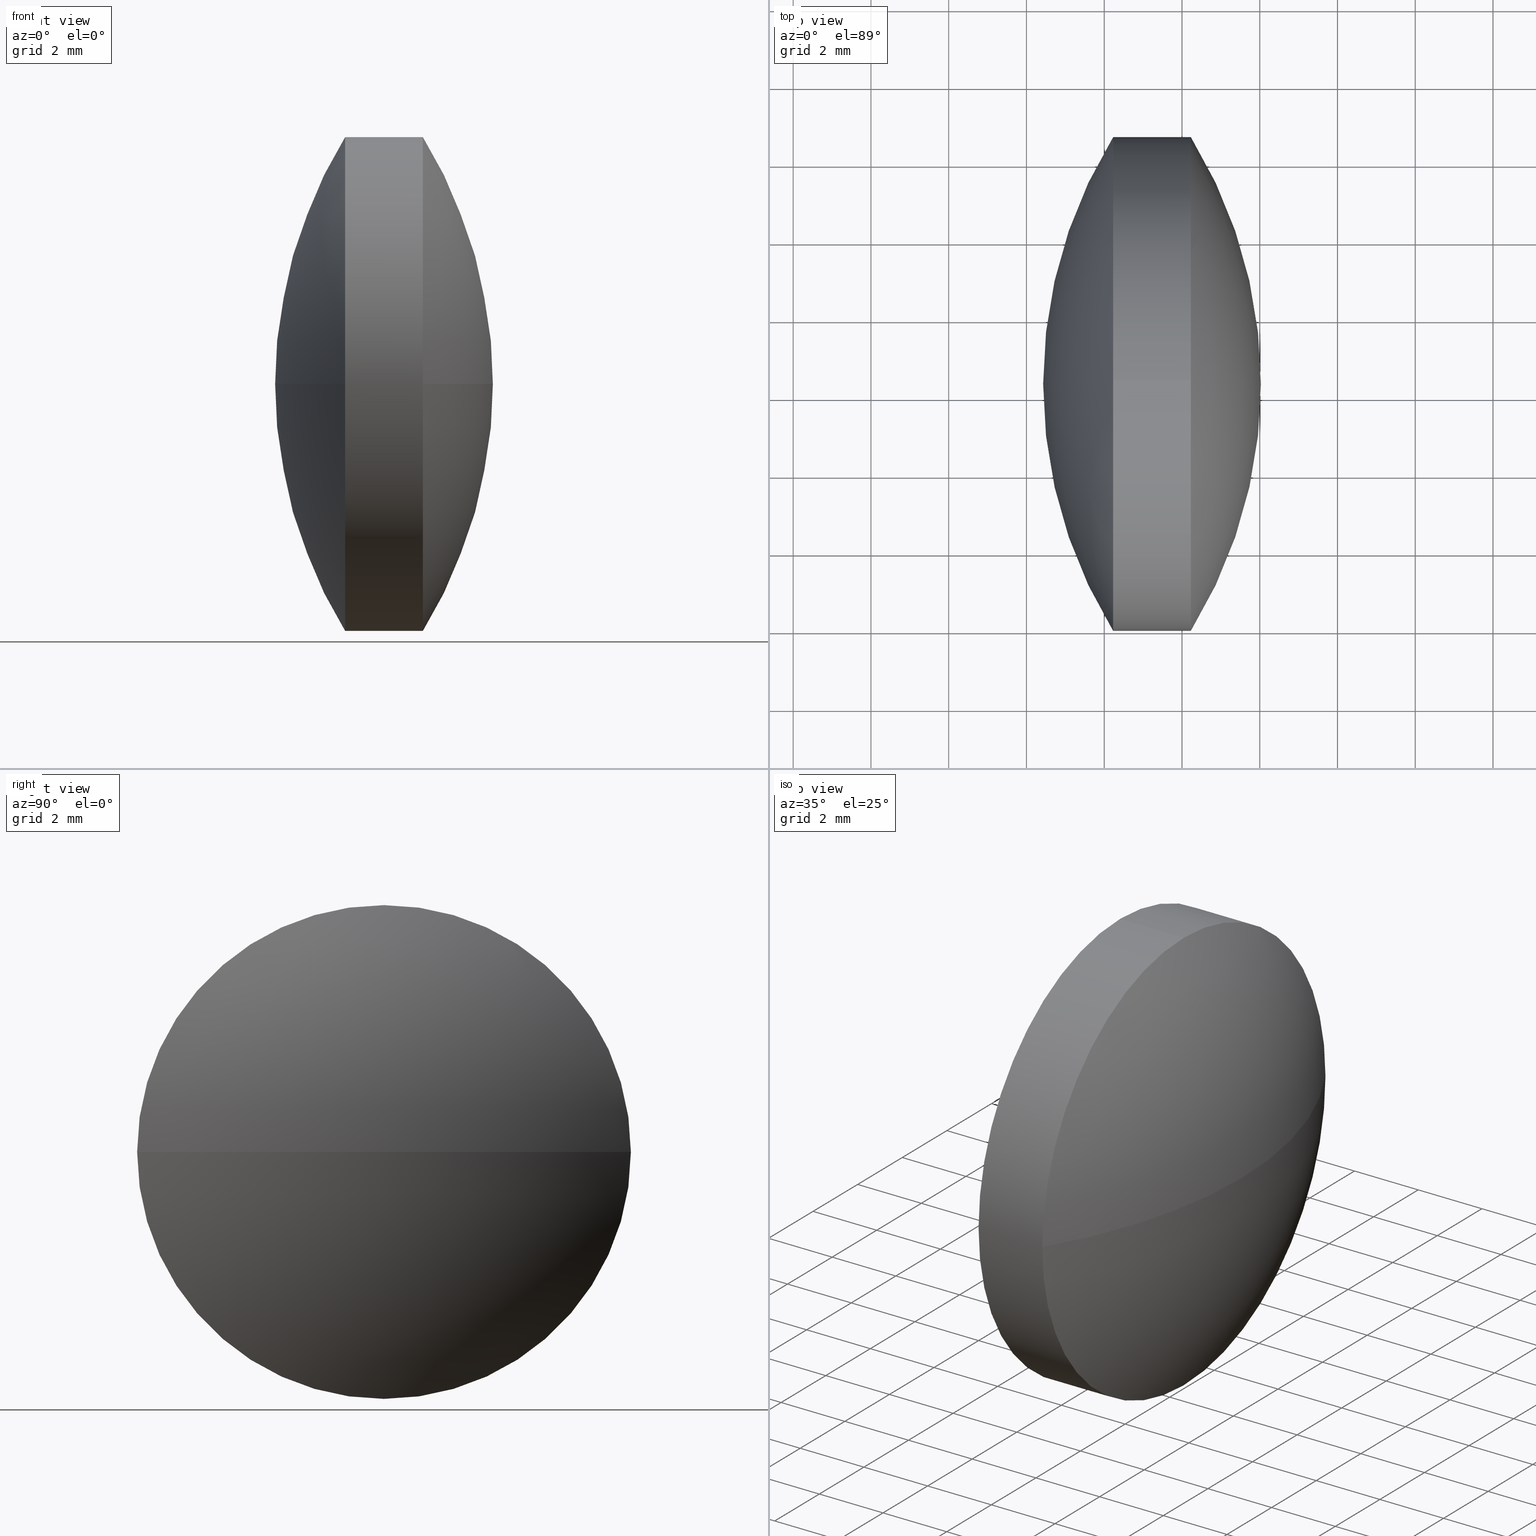
[diagram: canonical four-view strip — front | top / right | iso, engineering-drawing reading convention]
A machine part, canonical four-view strip (front | top / right | iso — engineering-drawing reading convention). The complete STEP part file that produces these views, byte-faithful:
ISO-10303-21;
HEADER;
FILE_DESCRIPTION (( 'STEP AP203' ),
    '1' );
FILE_NAME ('110136.STEP',
    '2019-07-08T08:42:02',
    ( '' ),
    ( '' ),
    'SwSTEP 2.0',
    'SolidWorks 2016',
    '' );
FILE_SCHEMA (( 'CONFIG_CONTROL_DESIGN' ));
ENDSEC;

DATA;
#1 = AXIS2_PLACEMENT_3D ( 'NONE', #150, #38, #118 ) ;
#2 = SPHERICAL_SURFACE ( 'NONE', #234, 12.10096423222025500 ) ;
#3 = CARTESIAN_POINT ( 'NONE',  ( 33.92811979796815800, 24.30805651159239700, 0.0000000000000000000 ) ) ;
#4 = AXIS2_PLACEMENT_3D ( 'NONE', #298, #65, #247 ) ;
#5 = ADVANCED_FACE ( 'NONE', ( #72 ), #266, .T. ) ;
#6 = DIRECTION ( 'NONE',  ( 0.0000000000000000000, 0.0000000000000000000, -1.000000000000000000 ) ) ;
#7 = CARTESIAN_POINT ( 'NONE',  ( 39.65270067541857900, 24.30805651159239000, 0.0000000000000000000 ) ) ;
#8 = CALENDAR_DATE ( 2019, 8, 7 ) ;
#9 = COORDINATED_UNIVERSAL_TIME_OFFSET ( 8, 0, .AHEAD. ) ;
#10 =( LENGTH_UNIT ( ) NAMED_UNIT ( * ) SI_UNIT ( .MILLI., .METRE. ) );
#11 = COORDINATED_UNIVERSAL_TIME_OFFSET ( 8, 0, .AHEAD. ) ;
#12 = ORGANIZATION ( 'δָ��', 'δָ��', '' ) ;
#13 = APPLICATION_PROTOCOL_DEFINITION ( 'international standard', 'config_control_design', 1994, #176 ) ;
#14 = CC_DESIGN_PERSON_AND_ORGANIZATION_ASSIGNMENT ( #263, #114, ( #159 ) ) ;
#15 = ORIENTED_EDGE ( 'NONE', *, *, #49, .F. ) ;
#16 = APPROVAL_STATUS ( 'not_yet_approved' ) ;
#17 = APPROVAL_PERSON_ORGANIZATION ( #241, #244, #205 ) ;
#18 = AXIS2_PLACEMENT_3D ( 'NONE', #84, #305, #229 ) ;
#19 = FACE_OUTER_BOUND ( 'NONE', #261, .T. ) ;
#20 = MECHANICAL_CONTEXT ( 'NONE', #304, 'mechanical' ) ;
#21 = APPROVAL_DATE_TIME ( #89, #244 ) ;
#22 = CALENDAR_DATE ( 2019, 8, 7 ) ;
#23 = COORDINATED_UNIVERSAL_TIME_OFFSET ( 8, 0, .AHEAD. ) ;
#24 = CIRCLE ( 'NONE', #341, 12.10096423222025500 ) ;
#25 = UNCERTAINTY_MEASURE_WITH_UNIT (LENGTH_MEASURE( 1.000000000000000100E-005 ), #10, 'distance_accuracy_value', 'NONE');
#26 = AXIS2_PLACEMENT_3D ( 'NONE', #202, #196, #198 ) ;
#27 = CARTESIAN_POINT ( 'NONE',  ( 39.65270067541857900, 24.30805651159239000, -6.349999999999997900 ) ) ;
#28 = PERSON_AND_ORGANIZATION ( #32, #12 ) ;
#29 = ORIENTED_EDGE ( 'NONE', *, *, #190, .T. ) ;
#30 = CARTESIAN_POINT ( 'NONE',  ( 33.92811979796815800, 24.30805651159239700, 0.0000000000000000000 ) ) ;
#31 = CC_DESIGN_PERSON_AND_ORGANIZATION_ASSIGNMENT ( #200, #285, ( #153 ) ) ;
#32 = PERSON ( 'δָ��', 'δָ��', 'δָ��', ('δָ��'), ('δָ��'), ('δָ��') ) ;
#33 = LOCAL_TIME ( 16, 42, 2.000000000000000000, #215 ) ;
#34 = CARTESIAN_POINT ( 'NONE',  ( 44.22913117304555200, 30.65805651159239500, 7.776507174585689200E-016 ) ) ;
#35 = LOCAL_TIME ( 16, 42, 2.000000000000000000, #23 ) ;
#36 = VERTEX_POINT ( 'NONE', #34 ) ;
#37 = CARTESIAN_POINT ( 'NONE',  ( 42.22906260161698100, 24.30805651159239000, 6.349999999999997900 ) ) ;
#38 = DIRECTION ( 'NONE',  ( -1.000000000000000000, -0.0000000000000000000, -0.0000000000000000000 ) ) ;
#39 = CC_DESIGN_PERSON_AND_ORGANIZATION_ASSIGNMENT ( #79, #121, ( #82 ) ) ;
#40 = DIRECTION ( 'NONE',  ( -1.000000000000000000, -0.0000000000000000000, -0.0000000000000000000 ) ) ;
#41 = AXIS2_PLACEMENT_3D ( 'NONE', #203, #236, #181 ) ;
#42 = EDGE_LOOP ( 'NONE', ( #333, #46, #56, #112, #214, #255 ) ) ;
#43 = CARTESIAN_POINT ( 'NONE',  ( 42.22906260161698100, 30.65805651159238800, 0.0000000000000000000 ) ) ;
#44 = APPROVAL_PERSON_ORGANIZATION ( #268, #113, #211 ) ;
#45 = PERSON_AND_ORGANIZATION_ROLE ( 'creator' ) ;
#46 = ORIENTED_EDGE ( 'NONE', *, *, #78, .T. ) ;
#47 = CC_DESIGN_PERSON_AND_ORGANIZATION_ASSIGNMENT ( #93, #45, ( #153 ) ) ;
#48 = CIRCLE ( 'NONE', #107, 12.10096423222029000 ) ;
#49 = EDGE_CURVE ( 'NONE', #99, #191, #252, .T. ) ;
#50 = LOCAL_TIME ( 16, 42, 2.000000000000000000, #314 ) ;
#51 = CC_DESIGN_APPROVAL ( #115, ( #221 ) ) ;
#52 = CC_DESIGN_APPROVAL ( #244, ( #171 ) ) ;
#53 = ORIENTED_EDGE ( 'NONE', *, *, #204, .T. ) ;
#54 = EDGE_CURVE ( 'NONE', #133, #104, #180, .T. ) ;
#55 = SHAPE_DEFINITION_REPRESENTATION ( #143, #313 ) ;
#56 = ORIENTED_EDGE ( 'NONE', *, *, #275, .F. ) ;
#57 = DIRECTION ( 'NONE',  ( -1.000000000000000000, -0.0000000000000000000, -0.0000000000000000000 ) ) ;
#58 = COORDINATED_UNIVERSAL_TIME_OFFSET ( 8, 0, .AHEAD. ) ;
#59 = AXIS2_PLACEMENT_3D ( 'NONE', #227, #83, #300 ) ;
#60 = DIRECTION ( 'NONE',  ( -1.000000000000000000, -0.0000000000000000000, -0.0000000000000000000 ) ) ;
#61 = DIRECTION ( 'NONE',  ( -0.0000000000000000000, 0.0000000000000000000, -1.000000000000000000 ) ) ;
#62 = LOCAL_TIME ( 16, 42, 2.000000000000000000, #260 ) ;
#63 = ORIENTED_EDGE ( 'NONE', *, *, #54, .T. ) ;
#64 = DIRECTION ( 'NONE',  ( -1.000000000000000000, -0.0000000000000000000, -0.0000000000000000000 ) ) ;
#65 = DIRECTION ( 'NONE',  ( -1.000000000000000000, -0.0000000000000000000, -0.0000000000000000000 ) ) ;
#66 = DIRECTION ( 'NONE',  ( 0.0000000000000000000, 0.0000000000000000000, 1.000000000000000000 ) ) ;
#67 = APPLICATION_PROTOCOL_DEFINITION ( 'international standard', 'config_control_design', 1994, #92 ) ;
#68 = ORIENTED_EDGE ( 'NONE', *, *, #192, .F. ) ;
#69 = DIRECTION ( 'NONE',  ( -1.000000000000000000, -0.0000000000000000000, -0.0000000000000000000 ) ) ;
#70 = CIRCLE ( 'NONE', #41, 6.349999999999997900 ) ;
#71 = APPROVAL_STATUS ( 'not_yet_approved' ) ;
#72 = FACE_OUTER_BOUND ( 'NONE', #138, .T. ) ;
#73 = CALENDAR_DATE ( 2019, 8, 7 ) ;
#74 = APPROVAL_ROLE ( '' ) ;
#75 = APPROVAL_ROLE ( '' ) ;
#76 = PERSON_AND_ORGANIZATION ( #32, #12 ) ;
#77 = APPROVAL_PERSON_ORGANIZATION ( #283, #148, #339 ) ;
#78 = EDGE_CURVE ( 'NONE', #320, #99, #274, .T. ) ;
#79 = PERSON_AND_ORGANIZATION ( #32, #12 ) ;
#80 = DIRECTION ( 'NONE',  ( 0.0000000000000000000, -1.000000000000000000, 0.0000000000000000000 ) ) ;
#81 = VERTEX_POINT ( 'NONE', #173 ) ;
#82 = SECURITY_CLASSIFICATION ( '', '', #152 ) ;
#83 = DIRECTION ( 'NONE',  ( -0.0000000000000000000, 0.0000000000000000000, -1.000000000000000000 ) ) ;
#84 = CARTESIAN_POINT ( 'NONE',  ( 42.22906260161698100, 24.30805651159239000, 0.0000000000000000000 ) ) ;
#85 = DATE_AND_TIME ( #162, #62 ) ;
#86 = CIRCLE ( 'NONE', #161, 12.10096423222025500 ) ;
#87 = CARTESIAN_POINT ( 'NONE',  ( 44.22913117304555200, 24.30805651159239000, -6.349999999999997900 ) ) ;
#88 = CARTESIAN_POINT ( 'NONE',  ( 0.0000000000000000000, 0.0000000000000000000, 0.0000000000000000000 ) ) ;
#89 = DATE_AND_TIME ( #164, #291 ) ;
#90 = CIRCLE ( 'NONE', #18, 6.349999999999997900 ) ;
#91 = CARTESIAN_POINT ( 'NONE',  ( 44.22913117304555200, 24.30805651159239000, 0.0000000000000000000 ) ) ;
#92 = APPLICATION_CONTEXT ( 'configuration controlled 3d designs of mechanical parts and assemblies' ) ;
#93 = PERSON_AND_ORGANIZATION ( #32, #12 ) ;
#94 = ORIENTED_EDGE ( 'NONE', *, *, #106, .T. ) ;
#95 = CALENDAR_DATE ( 2019, 8, 7 ) ;
#96 = AXIS2_PLACEMENT_3D ( 'NONE', #91, #69, #66 ) ;
#97 = APPLICATION_PROTOCOL_DEFINITION ( 'international standard', 'config_control_design', 1994, #154 ) ;
#98 = PRODUCT_DEFINITION ( 'δ֪', '', #153, #284 ) ;
#99 = VERTEX_POINT ( 'NONE', #134 ) ;
#100 = CC_DESIGN_PERSON_AND_ORGANIZATION_ASSIGNMENT ( #122, #259, ( #299 ) ) ;
#101 = APPROVAL_DATE_TIME ( #345, #148 ) ;
#102 = ORIENTED_EDGE ( 'NONE', *, *, #335, .T. ) ;
#103 = CIRCLE ( 'NONE', #186, 6.349999999999997900 ) ;
#104 = VERTEX_POINT ( 'NONE', #329 ) ;
#105 = CC_DESIGN_DATE_AND_TIME_ASSIGNMENT ( #139, #316, ( #82 ) ) ;
#106 = EDGE_CURVE ( 'NONE', #327, #133, #86, .T. ) ;
#107 = AXIS2_PLACEMENT_3D ( 'NONE', #233, #144, #141 ) ;
#108 = DIRECTION ( 'NONE',  ( -1.000000000000000000, 0.0000000000000000000, 0.0000000000000000000 ) ) ;
#109 = ADVANCED_FACE ( 'NONE', ( #19 ), #174, .T. ) ;
#110 = CARTESIAN_POINT ( 'NONE',  ( 44.22913117304555200, 24.30805651159239000, 0.0000000000000000000 ) ) ;
#111 = ADVANCED_FACE ( 'NONE', ( #240 ), #201, .T. ) ;
#112 = ORIENTED_EDGE ( 'NONE', *, *, #311, .F. ) ;
#113 = APPROVAL ( #71, 'δָ��' ) ;
#114 = PERSON_AND_ORGANIZATION_ROLE ( 'creator' ) ;
#115 = APPROVAL ( #216, 'δָ��' ) ;
#116 =( NAMED_UNIT ( * ) SI_UNIT ( $, .STERADIAN. ) SOLID_ANGLE_UNIT ( ) );
#117 = AXIS2_PLACEMENT_3D ( 'NONE', #277, #40, #334 ) ;
#118 = DIRECTION ( 'NONE',  ( 0.0000000000000000000, 0.0000000000000000000, 1.000000000000000000 ) ) ;
#119 = ORIENTED_EDGE ( 'NONE', *, *, #218, .F. ) ;
#120 = PERSON_AND_ORGANIZATION_ROLE ( 'design_owner' ) ;
#121 = PERSON_AND_ORGANIZATION_ROLE ( 'classification_officer' ) ;
#122 = PERSON_AND_ORGANIZATION ( #32, #12 ) ;
#123 = VECTOR ( 'NONE', #57, 1000.000000000000000 ) ;
#124 = PERSON_AND_ORGANIZATION_ROLE ( 'classification_officer' ) ;
#125 = EDGE_CURVE ( 'NONE', #327, #36, #24, .T. ) ;
#126 = APPROVAL_STATUS ( 'not_yet_approved' ) ;
#127 = APPROVAL_DATE_TIME ( #245, #115 ) ;
#128 = EDGE_LOOP ( 'NONE', ( #296, #94, #307, #323 ) ) ;
#129 = AXIS2_PLACEMENT_3D ( 'NONE', #251, #61, #326 ) ;
#130 = AXIS2_PLACEMENT_3D ( 'NONE', #178, #332, #331 ) ;
#131 = APPROVAL_PERSON_ORGANIZATION ( #279, #294, #257 ) ;
#132 = AXIS2_PLACEMENT_3D ( 'NONE', #322, #253, #250 ) ;
#133 = VERTEX_POINT ( 'NONE', #137 ) ;
#134 = CARTESIAN_POINT ( 'NONE',  ( 42.22906260161698100, 24.30805651159239000, -6.349999999999997900 ) ) ;
#135 = DIRECTION ( 'NONE',  ( 0.0000000000000000000, 0.0000000000000000000, 1.000000000000000000 ) ) ;
#136 = ADVANCED_FACE ( 'NONE', ( #163 ), #242, .T. ) ;
#137 = CARTESIAN_POINT ( 'NONE',  ( 44.22913117304555200, 17.95805651159239200, 0.0000000000000000000 ) ) ;
#138 = EDGE_LOOP ( 'NONE', ( #248, #312, #63, #29, #119, #15 ) ) ;
#139 = DATE_AND_TIME ( #8, #287 ) ;
#140 = DIRECTION ( 'NONE',  ( 0.0000000000000000000, 0.0000000000000000000, 1.000000000000000000 ) ) ;
#141 = DIRECTION ( 'NONE',  ( 0.0000000000000000000, 1.000000000000000000, 1.224646799147353000E-016 ) ) ;
#142 = AXIS2_PLACEMENT_3D ( 'NONE', #297, #249, #135 ) ;
#143 = PRODUCT_DEFINITION_SHAPE ( 'NONE', 'NONE',  #98 ) ;
#144 = DIRECTION ( 'NONE',  ( 0.0000000000000000000, 1.224646799147353200E-016, -1.000000000000000000 ) ) ;
#145 = LOCAL_TIME ( 16, 42, 2.000000000000000000, #302 ) ;
#146 = CARTESIAN_POINT ( 'NONE',  ( 0.0000000000000000000, 0.0000000000000000000, 0.0000000000000000000 ) ) ;
#147 = CIRCLE ( 'NONE', #130, 12.10096423222029000 ) ;
#148 = APPROVAL ( #126, 'δָ��' ) ;
#149 = CC_DESIGN_APPROVAL ( #271, ( #98 ) ) ;
#150 = CARTESIAN_POINT ( 'NONE',  ( 44.22913117304555200, 24.30805651159239000, 0.0000000000000000000 ) ) ;
#151 = COORDINATED_UNIVERSAL_TIME_OFFSET ( 8, 0, .AHEAD. ) ;
#152 = SECURITY_CLASSIFICATION_LEVEL ( 'unclassified' ) ;
#153 = PRODUCT_DEFINITION_FORMATION_WITH_SPECIFIED_SOURCE ( '�κ�', '', #299, .NOT_KNOWN. ) ;
#154 = APPLICATION_CONTEXT ( 'configuration controlled 3d designs of mechanical parts and assemblies' ) ;
#155 = CALENDAR_DATE ( 2019, 8, 7 ) ;
#156 = PERSON_AND_ORGANIZATION ( #32, #12 ) ;
#157 = AXIS2_PLACEMENT_3D ( 'NONE', #146, #209, #207 ) ;
#158 = ORIENTED_EDGE ( 'NONE', *, *, #54, .F. ) ;
#159 = PRODUCT_DEFINITION ( 'δ֪', '', #171, #328 ) ;
#160 = DATE_AND_TIME ( #95, #177 ) ;
#161 = AXIS2_PLACEMENT_3D ( 'NONE', #3, #6, #108 ) ;
#162 = CALENDAR_DATE ( 2019, 8, 7 ) ;
#163 = FACE_OUTER_BOUND ( 'NONE', #264, .T. ) ;
#164 = CALENDAR_DATE ( 2019, 8, 7 ) ;
#165 = CIRCLE ( 'NONE', #96, 6.349999999999997900 ) ;
#166 = CC_DESIGN_SECURITY_CLASSIFICATION ( #82, ( #171 ) ) ;
#167 = DIRECTION ( 'NONE',  ( 0.0000000000000000000, -1.224646799147353200E-016, 1.000000000000000000 ) ) ;
#168 = CC_DESIGN_APPROVAL ( #148, ( #82 ) ) ;
#169 = CALENDAR_DATE ( 2019, 8, 7 ) ;
#170 = ADVANCED_FACE ( 'NONE', ( #321 ), #2, .T. ) ;
#171 = PRODUCT_DEFINITION_FORMATION_WITH_SPECIFIED_SOURCE ( '�κ�', '', #197, .NOT_KNOWN. ) ;
#172 = DIRECTION ( 'NONE',  ( -1.000000000000000000, -0.0000000000000000000, -0.0000000000000000000 ) ) ;
#173 = CARTESIAN_POINT ( 'NONE',  ( 40.42910974447412500, 24.30805651159238700, 0.0000000000000000000 ) ) ;
#174 = SPHERICAL_SURFACE ( 'NONE', #129, 12.10096423222028700 ) ;
#175 = APPROVAL_STATUS ( 'not_yet_approved' ) ;
#176 = APPLICATION_CONTEXT ( 'configuration controlled 3d designs of mechanical parts and assemblies' ) ;
#177 = LOCAL_TIME ( 16, 42, 2.000000000000000000, #58 ) ;
#178 = CARTESIAN_POINT ( 'NONE',  ( 52.53007397669441800, 24.30805651159238700, 0.0000000000000000000 ) ) ;
#179 =( NAMED_UNIT ( * ) PLANE_ANGLE_UNIT ( ) SI_UNIT ( $, .RADIAN. ) );
#180 = CIRCLE ( 'NONE', #26, 6.349999999999997900 ) ;
#181 = DIRECTION ( 'NONE',  ( 0.0000000000000000000, 0.0000000000000000000, 1.000000000000000000 ) ) ;
#182 = CALENDAR_DATE ( 2019, 8, 7 ) ;
#183 = PERSON_AND_ORGANIZATION_ROLE ( 'design_supplier' ) ;
#184 = PERSON_AND_ORGANIZATION_ROLE ( 'creator' ) ;
#185 = ORIENTED_EDGE ( 'NONE', *, *, #275, .T. ) ;
#186 = AXIS2_PLACEMENT_3D ( 'NONE', #110, #64, #270 ) ;
#187 = APPLICATION_PROTOCOL_DEFINITION ( 'international standard', 'config_control_design', 1994, #304 ) ;
#188 = ORIENTED_EDGE ( 'NONE', *, *, #106, .F. ) ;
#189 = CC_DESIGN_PERSON_AND_ORGANIZATION_ASSIGNMENT ( #243, #184, ( #98 ) ) ;
#190 = EDGE_CURVE ( 'NONE', #104, #317, #232, .T. ) ;
#191 = VERTEX_POINT ( 'NONE', #269 ) ;
#192 = EDGE_CURVE ( 'NONE', #104, #36, #103, .T. ) ;
#193 = CLOSED_SHELL ( 'NONE', ( #111, #136, #195, #109, #170, #5 ) ) ;
#194 = DIRECTION ( 'NONE',  ( 0.0000000000000000000, -1.000000000000000000, -1.224646799147353200E-016 ) ) ;
#195 = ADVANCED_FACE ( 'NONE', ( #315 ), #288, .T. ) ;
#196 = DIRECTION ( 'NONE',  ( -1.000000000000000000, -0.0000000000000000000, -0.0000000000000000000 ) ) ;
#197 = PRODUCT ( '110136', '110136', '', ( #256 ) ) ;
#198 = DIRECTION ( 'NONE',  ( 0.0000000000000000000, 0.0000000000000000000, 1.000000000000000000 ) ) ;
#199 = CC_DESIGN_DATE_AND_TIME_ASSIGNMENT ( #319, #340, ( #98 ) ) ;
#200 = PERSON_AND_ORGANIZATION ( #32, #12 ) ;
#201 = CYLINDRICAL_SURFACE ( 'NONE', #223, 6.349999999999997900 ) ;
#202 = CARTESIAN_POINT ( 'NONE',  ( 44.22913117304555200, 24.30805651159239000, 0.0000000000000000000 ) ) ;
#203 = CARTESIAN_POINT ( 'NONE',  ( 42.22906260161698100, 24.30805651159239000, 0.0000000000000000000 ) ) ;
#204 = EDGE_CURVE ( 'NONE', #290, #81, #147, .T. ) ;
#205 = APPROVAL_ROLE ( '' ) ;
#206 = MANIFOLD_SOLID_BREP ( '��ת1', #193 ) ;
#207 = DIRECTION ( 'NONE',  ( 1.000000000000000000, 0.0000000000000000000, 0.0000000000000000000 ) ) ;
#208 = ORIENTED_EDGE ( 'NONE', *, *, #311, .T. ) ;
#209 = DIRECTION ( 'NONE',  ( 0.0000000000000000000, 0.0000000000000000000, 1.000000000000000000 ) ) ;
#210 = CC_DESIGN_APPROVAL ( #294, ( #153 ) ) ;
#211 = APPROVAL_ROLE ( '' ) ;
#212 = AXIS2_PLACEMENT_3D ( 'NONE', #88, #235, #254 ) ;
#213 = APPROVAL_DATE_TIME ( #306, #271 ) ;
#214 = ORIENTED_EDGE ( 'NONE', *, *, #190, .F. ) ;
#215 = COORDINATED_UNIVERSAL_TIME_OFFSET ( 8, 0, .AHEAD. ) ;
#216 = APPROVAL_STATUS ( 'not_yet_approved' ) ;
#217 = ORIENTED_EDGE ( 'NONE', *, *, #49, .T. ) ;
#218 = EDGE_CURVE ( 'NONE', #191, #317, #70, .T. ) ;
#219 = CIRCLE ( 'NONE', #117, 6.349999999999997900 ) ;
#220 = EDGE_LOOP ( 'NONE', ( #185, #217, #102, #226 ) ) ;
#221 = SECURITY_CLASSIFICATION ( '', '', #286 ) ;
#222 = COORDINATED_UNIVERSAL_TIME_OFFSET ( 8, 0, .AHEAD. ) ;
#223 = AXIS2_PLACEMENT_3D ( 'NONE', #7, #172, #140 ) ;
#224 = VECTOR ( 'NONE', #60, 1000.000000000000000 ) ;
#225 = CC_DESIGN_PERSON_AND_ORGANIZATION_ASSIGNMENT ( #292, #124, ( #221 ) ) ;
#226 = ORIENTED_EDGE ( 'NONE', *, *, #204, .F. ) ;
#227 = CARTESIAN_POINT ( 'NONE',  ( 52.53007397669441800, 24.30805651159238700, 0.0000000000000000000 ) ) ;
#228 = DIRECTION ( 'NONE',  ( 0.0000000000000000000, 0.0000000000000000000, 1.000000000000000000 ) ) ;
#229 = DIRECTION ( 'NONE',  ( 0.0000000000000000000, 0.0000000000000000000, 1.000000000000000000 ) ) ;
#230 = LOCAL_TIME ( 16, 42, 2.000000000000000000, #9 ) ;
#231 = PERSON_AND_ORGANIZATION ( #32, #12 ) ;
#232 = LINE ( 'NONE', #267, #224 ) ;
#233 = CARTESIAN_POINT ( 'NONE',  ( 52.53007397669441800, 24.30805651159238700, 0.0000000000000000000 ) ) ;
#234 = AXIS2_PLACEMENT_3D ( 'NONE', #30, #228, #80 ) ;
#235 = DIRECTION ( 'NONE',  ( 0.0000000000000000000, 0.0000000000000000000, 1.000000000000000000 ) ) ;
#236 = DIRECTION ( 'NONE',  ( -1.000000000000000000, -0.0000000000000000000, -0.0000000000000000000 ) ) ;
#237 = PERSON_AND_ORGANIZATION ( #32, #12 ) ;
#238 = ORIENTED_EDGE ( 'NONE', *, *, #125, .T. ) ;
#239 = CC_DESIGN_PERSON_AND_ORGANIZATION_ASSIGNMENT ( #76, #120, ( #197 ) ) ;
#240 = FACE_OUTER_BOUND ( 'NONE', #42, .T. ) ;
#241 = PERSON_AND_ORGANIZATION ( #32, #12 ) ;
#242 = SPHERICAL_SURFACE ( 'NONE', #132, 12.10096423222025500 ) ;
#243 = PERSON_AND_ORGANIZATION ( #32, #12 ) ;
#244 = APPROVAL ( #175, 'δָ��' ) ;
#245 = DATE_AND_TIME ( #310, #33 ) ;
#246 = CIRCLE ( 'NONE', #1, 6.349999999999997900 ) ;
#247 = DIRECTION ( 'NONE',  ( 0.0000000000000000000, 0.0000000000000000000, 1.000000000000000000 ) ) ;
#248 = ORIENTED_EDGE ( 'NONE', *, *, #78, .F. ) ;
#249 = DIRECTION ( 'NONE',  ( -1.000000000000000000, -0.0000000000000000000, -0.0000000000000000000 ) ) ;
#250 = DIRECTION ( 'NONE',  ( 0.0000000000000000000, -1.000000000000000000, 0.0000000000000000000 ) ) ;
#251 = CARTESIAN_POINT ( 'NONE',  ( 52.53007397669441800, 24.30805651159238700, 0.0000000000000000000 ) ) ;
#252 = CIRCLE ( 'NONE', #4, 6.349999999999997900 ) ;
#253 = DIRECTION ( 'NONE',  ( 0.0000000000000000000, 0.0000000000000000000, 1.000000000000000000 ) ) ;
#254 = DIRECTION ( 'NONE',  ( 1.000000000000000000, 0.0000000000000000000, 0.0000000000000000000 ) ) ;
#255 = ORIENTED_EDGE ( 'NONE', *, *, #192, .T. ) ;
#256 = MECHANICAL_CONTEXT ( 'NONE', #92, 'mechanical' ) ;
#257 = APPROVAL_ROLE ( '' ) ;
#258 = EDGE_CURVE ( 'NONE', #320, #133, #165, .T. ) ;
#259 = PERSON_AND_ORGANIZATION_ROLE ( 'design_owner' ) ;
#260 = COORDINATED_UNIVERSAL_TIME_OFFSET ( 8, 0, .AHEAD. ) ;
#261 = EDGE_LOOP ( 'NONE', ( #338, #342, #208, #53 ) ) ;
#262 =( GEOMETRIC_REPRESENTATION_CONTEXT ( 3 ) GLOBAL_UNCERTAINTY_ASSIGNED_CONTEXT ( ( #25 ) ) GLOBAL_UNIT_ASSIGNED_CONTEXT ( ( #10, #179, #116 ) ) REPRESENTATION_CONTEXT ( 'NONE', 'WORKASPACE' ) );
#263 = PERSON_AND_ORGANIZATION ( #32, #12 ) ;
#264 = EDGE_LOOP ( 'NONE', ( #188, #238, #68, #158 ) ) ;
#265 = EDGE_CURVE ( 'NONE', #36, #320, #246, .T. ) ;
#266 = CYLINDRICAL_SURFACE ( 'NONE', #142, 6.349999999999997900 ) ;
#267 = CARTESIAN_POINT ( 'NONE',  ( 39.65270067541857900, 24.30805651159239000, 6.349999999999997900 ) ) ;
#268 = PERSON_AND_ORGANIZATION ( #32, #12 ) ;
#269 = CARTESIAN_POINT ( 'NONE',  ( 42.22906260161698100, 17.95805651159238900, -7.776507174585690200E-016 ) ) ;
#270 = DIRECTION ( 'NONE',  ( 0.0000000000000000000, 0.0000000000000000000, 1.000000000000000000 ) ) ;
#271 = APPROVAL ( #309, 'δָ��' ) ;
#272 = CC_DESIGN_PERSON_AND_ORGANIZATION_ASSIGNMENT ( #231, #336, ( #171 ) ) ;
#273 = CARTESIAN_POINT ( 'NONE',  ( 33.92811979796815800, 24.30805651159239700, 0.0000000000000000000 ) ) ;
#274 = LINE ( 'NONE', #27, #123 ) ;
#275 = EDGE_CURVE ( 'NONE', #290, #99, #90, .T. ) ;
#276 = LOCAL_TIME ( 16, 42, 2.000000000000000000, #222 ) ;
#277 = CARTESIAN_POINT ( 'NONE',  ( 42.22906260161698100, 24.30805651159239000, 0.0000000000000000000 ) ) ;
#278 = CC_DESIGN_SECURITY_CLASSIFICATION ( #221, ( #153 ) ) ;
#279 = PERSON_AND_ORGANIZATION ( #32, #12 ) ;
#280 = DATE_TIME_ROLE ( 'creation_date' ) ;
#281 = DATE_TIME_ROLE ( 'classification_date' ) ;
#282 = CC_DESIGN_DATE_AND_TIME_ASSIGNMENT ( #303, #280, ( #159 ) ) ;
#283 = PERSON_AND_ORGANIZATION ( #32, #12 ) ;
#284 = DESIGN_CONTEXT ( 'detailed design', #154, 'design' ) ;
#285 = PERSON_AND_ORGANIZATION_ROLE ( 'design_supplier' ) ;
#286 = SECURITY_CLASSIFICATION_LEVEL ( 'unclassified' ) ;
#287 = LOCAL_TIME ( 16, 42, 2.000000000000000000, #11 ) ;
#288 = SPHERICAL_SURFACE ( 'NONE', #59, 12.10096423222028700 ) ;
#289 = CC_DESIGN_DATE_AND_TIME_ASSIGNMENT ( #295, #281, ( #221 ) ) ;
#290 = VERTEX_POINT ( 'NONE', #43 ) ;
#291 = LOCAL_TIME ( 16, 42, 2.000000000000000000, #151 ) ;
#292 = PERSON_AND_ORGANIZATION ( #32, #12 ) ;
#293 = PRODUCT_DEFINITION_SHAPE ( 'NONE', 'NONE',  #159 ) ;
#294 = APPROVAL ( #16, 'δָ��' ) ;
#295 = DATE_AND_TIME ( #22, #230 ) ;
#296 = ORIENTED_EDGE ( 'NONE', *, *, #125, .F. ) ;
#297 = CARTESIAN_POINT ( 'NONE',  ( 39.65270067541857900, 24.30805651159239000, 0.0000000000000000000 ) ) ;
#298 = CARTESIAN_POINT ( 'NONE',  ( 42.22906260161698100, 24.30805651159239000, 0.0000000000000000000 ) ) ;
#299 = PRODUCT ( '110136', '110136', '', ( #20 ) ) ;
#300 = DIRECTION ( 'NONE',  ( 0.0000000000000000000, 1.000000000000000000, 0.0000000000000000000 ) ) ;
#301 = APPROVAL_PERSON_ORGANIZATION ( #237, #115, #74 ) ;
#302 = COORDINATED_UNIVERSAL_TIME_OFFSET ( 8, 0, .AHEAD. ) ;
#303 = DATE_AND_TIME ( #182, #50 ) ;
#304 = APPLICATION_CONTEXT ( 'configuration controlled 3d designs of mechanical parts and assemblies' ) ;
#305 = DIRECTION ( 'NONE',  ( -1.000000000000000000, -0.0000000000000000000, -0.0000000000000000000 ) ) ;
#306 = DATE_AND_TIME ( #169, #35 ) ;
#307 = ORIENTED_EDGE ( 'NONE', *, *, #258, .F. ) ;
#308 = PRODUCT_RELATED_PRODUCT_CATEGORY ( 'detail', '', ( #299 ) ) ;
#309 = APPROVAL_STATUS ( 'not_yet_approved' ) ;
#310 = CALENDAR_DATE ( 2019, 8, 7 ) ;
#311 = EDGE_CURVE ( 'NONE', #317, #290, #219, .T. ) ;
#312 = ORIENTED_EDGE ( 'NONE', *, *, #258, .T. ) ;
#313 = ADVANCED_BREP_SHAPE_REPRESENTATION ( '110136', ( #206, #157 ), #262 ) ;
#314 = COORDINATED_UNIVERSAL_TIME_OFFSET ( 8, 0, .AHEAD. ) ;
#315 = FACE_OUTER_BOUND ( 'NONE', #220, .T. ) ;
#316 = DATE_TIME_ROLE ( 'classification_date' ) ;
#317 = VERTEX_POINT ( 'NONE', #37 ) ;
#318 = APPROVAL_DATE_TIME ( #160, #113 ) ;
#319 = DATE_AND_TIME ( #155, #145 ) ;
#320 = VERTEX_POINT ( 'NONE', #87 ) ;
#321 = FACE_OUTER_BOUND ( 'NONE', #128, .T. ) ;
#322 = CARTESIAN_POINT ( 'NONE',  ( 33.92811979796815800, 24.30805651159239700, 0.0000000000000000000 ) ) ;
#323 = ORIENTED_EDGE ( 'NONE', *, *, #265, .F. ) ;
#324 = PRODUCT_RELATED_PRODUCT_CATEGORY ( 'detail', '', ( #197 ) ) ;
#325 = CC_DESIGN_PERSON_AND_ORGANIZATION_ASSIGNMENT ( #156, #183, ( #171 ) ) ;
#326 = DIRECTION ( 'NONE',  ( 0.0000000000000000000, 1.000000000000000000, 0.0000000000000000000 ) ) ;
#327 = VERTEX_POINT ( 'NONE', #330 ) ;
#328 = DESIGN_CONTEXT ( 'detailed design', #176, 'design' ) ;
#329 = CARTESIAN_POINT ( 'NONE',  ( 44.22913117304555200, 24.30805651159239000, 6.349999999999997900 ) ) ;
#330 = CARTESIAN_POINT ( 'NONE',  ( 46.02908403018841500, 24.30805651159239700, 0.0000000000000000000 ) ) ;
#331 = DIRECTION ( 'NONE',  ( 1.000000000000000000, 0.0000000000000000000, 0.0000000000000000000 ) ) ;
#332 = DIRECTION ( 'NONE',  ( -0.0000000000000000000, 0.0000000000000000000, 1.000000000000000000 ) ) ;
#333 = ORIENTED_EDGE ( 'NONE', *, *, #265, .T. ) ;
#334 = DIRECTION ( 'NONE',  ( 0.0000000000000000000, 0.0000000000000000000, 1.000000000000000000 ) ) ;
#335 = EDGE_CURVE ( 'NONE', #191, #81, #48, .T. ) ;
#336 = PERSON_AND_ORGANIZATION_ROLE ( 'creator' ) ;
#337 = APPROVAL_DATE_TIME ( #85, #294 ) ;
#338 = ORIENTED_EDGE ( 'NONE', *, *, #335, .F. ) ;
#339 = APPROVAL_ROLE ( '' ) ;
#340 = DATE_TIME_ROLE ( 'creation_date' ) ;
#341 = AXIS2_PLACEMENT_3D ( 'NONE', #273, #167, #194 ) ;
#342 = ORIENTED_EDGE ( 'NONE', *, *, #218, .T. ) ;
#343 = CC_DESIGN_APPROVAL ( #113, ( #159 ) ) ;
#344 = APPROVAL_PERSON_ORGANIZATION ( #28, #271, #75 ) ;
#345 = DATE_AND_TIME ( #73, #276 ) ;
ENDSEC;
END-ISO-10303-21;
